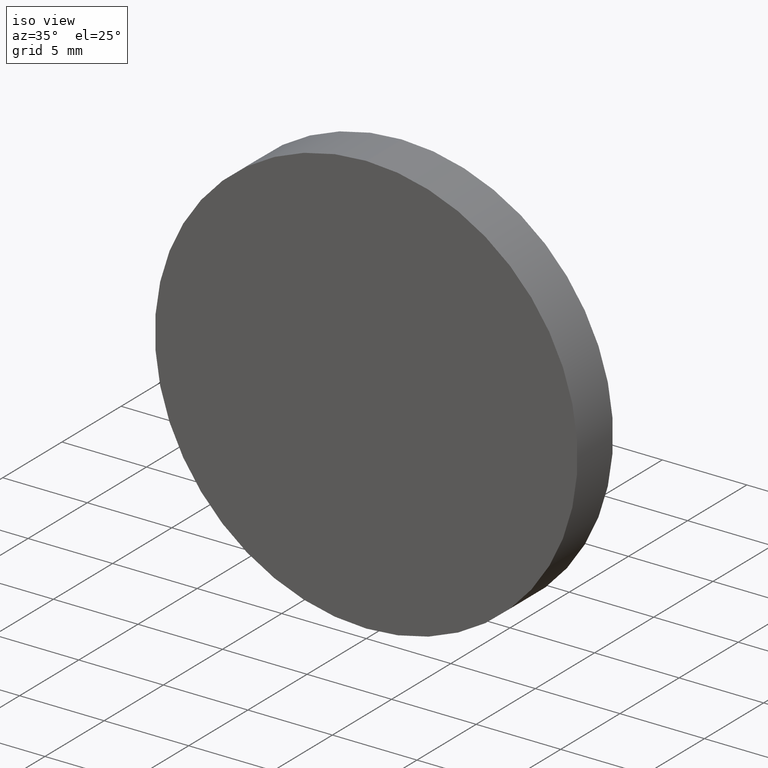
[diagram: clean part render]
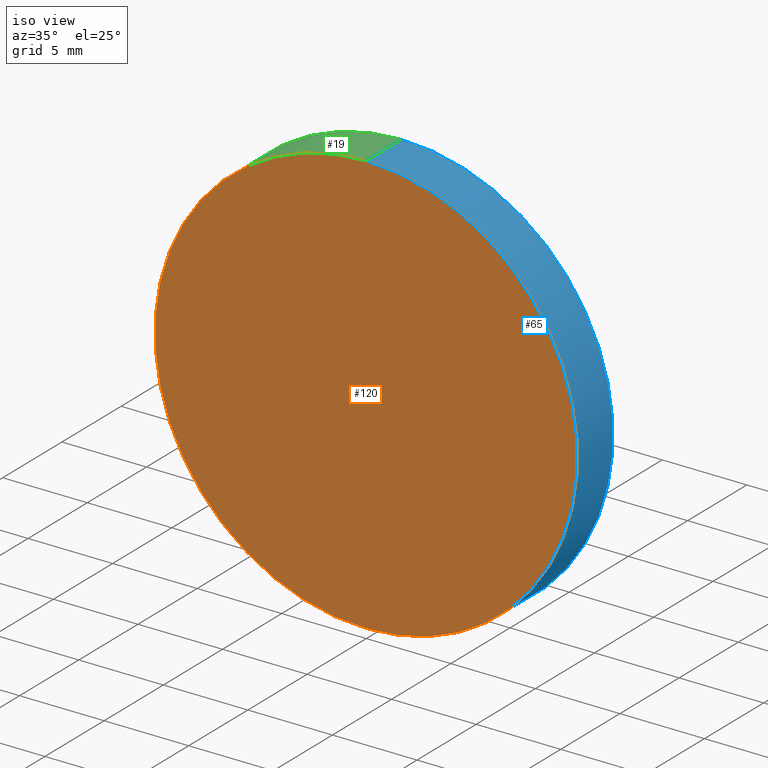
[diagram: same view with three faces highlighted in distinct colors, each labeled with its STEP entity id]
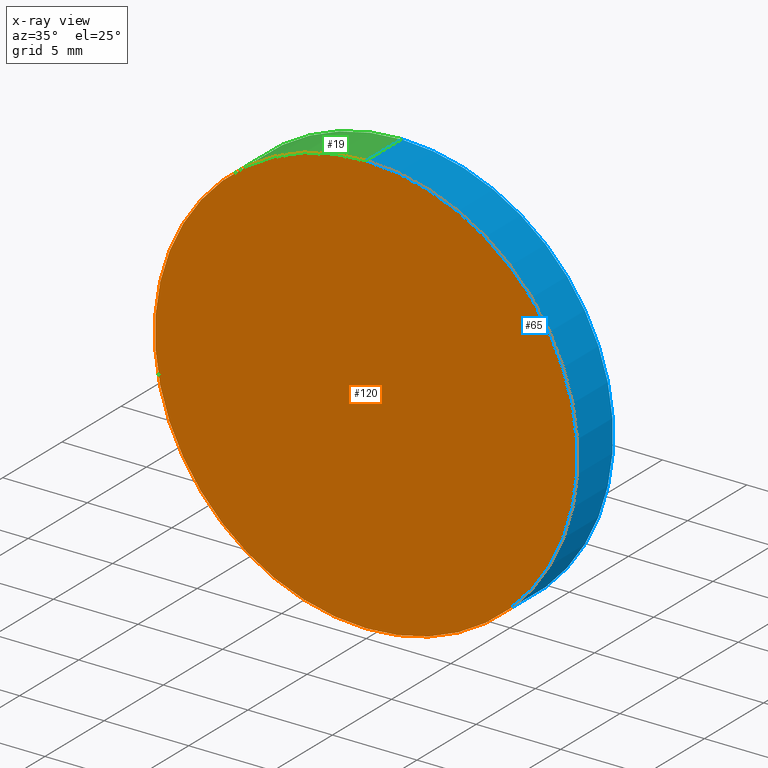
[diagram: x-ray of the same camera — body ghosted, the three highlighted faces saturated]
A machine part, iso view with three faces highlighted in distinct colors.
The next image is the same camera in x-ray (body ghosted, the three faces saturated) — at least one of them is partly hidden behind the body in this view.
Their STEP definitions:

[orange] entity #120 — the highlighted planar face has unit normal (0, 1, 0).
#5 = CIRCLE ( 'NONE', #113, 12.50000000000000000 ) ;
#8 = CARTESIAN_POINT ( 'NONE',  ( 1.530808498934191500E-015, 0.0000000000000000000, 12.50000000000000000 ) ) ;
#13 = VERTEX_POINT ( 'NONE', #8 ) ;
#15 = ORIENTED_EDGE ( 'NONE', *, *, #125, .F. ) ;
#16 = DIRECTION ( 'NONE',  ( 0.0000000000000000000, 0.0000000000000000000, 1.000000000000000000 ) ) ;
#20 = VERTEX_POINT ( 'NONE', #91 ) ;
#35 = AXIS2_PLACEMENT_3D ( 'NONE', #106, #94, #16 ) ;
#42 = AXIS2_PLACEMENT_3D ( 'NONE', #107, #73, #137 ) ;
#54 = CIRCLE ( 'NONE', #35, 12.50000000000000000 ) ;
#61 = CARTESIAN_POINT ( 'NONE',  ( 0.0000000000000000000, 0.0000000000000000000, 0.0000000000000000000 ) ) ;
#66 = DIRECTION ( 'NONE',  ( 0.0000000000000000000, 1.000000000000000000, 0.0000000000000000000 ) ) ;
#68 = ORIENTED_EDGE ( 'NONE', *, *, #69, .F. ) ;
#69 = EDGE_CURVE ( 'NONE', #13, #20, #5, .T. ) ;
#70 = PLANE ( 'NONE',  #42 ) ;
#73 = DIRECTION ( 'NONE',  ( 0.0000000000000000000, 1.000000000000000000, 0.0000000000000000000 ) ) ;
#77 = EDGE_LOOP ( 'NONE', ( #15, #68 ) ) ;
#91 = CARTESIAN_POINT ( 'NONE',  ( 0.0000000000000000000, 0.0000000000000000000, -12.50000000000000000 ) ) ;
#94 = DIRECTION ( 'NONE',  ( 0.0000000000000000000, 1.000000000000000000, 0.0000000000000000000 ) ) ;
#106 = CARTESIAN_POINT ( 'NONE',  ( 0.0000000000000000000, 0.0000000000000000000, 0.0000000000000000000 ) ) ;
#107 = CARTESIAN_POINT ( 'NONE',  ( 0.0000000000000000000, 0.0000000000000000000, 0.0000000000000000000 ) ) ;
#113 = AXIS2_PLACEMENT_3D ( 'NONE', #61, #66, #127 ) ;
#120 = ADVANCED_FACE ( 'NONE', ( #134 ), #70, .F. ) ;
#125 = EDGE_CURVE ( 'NONE', #20, #13, #54, .T. ) ;
#127 = DIRECTION ( 'NONE',  ( 0.0000000000000000000, 0.0000000000000000000, 1.000000000000000000 ) ) ;
#134 = FACE_OUTER_BOUND ( 'NONE', #77, .T. ) ;
#137 = DIRECTION ( 'NONE',  ( 0.0000000000000000000, -0.0000000000000000000, 1.000000000000000000 ) ) ;

[blue] entity #65 — the highlighted cylindrical surface (partial cylindrical patch) has radius 12.5 mm, axis along (-0, -1, -0).
#3 = LINE ( 'NONE', #31, #53 ) ;
#5 = CIRCLE ( 'NONE', #113, 12.50000000000000000 ) ;
#8 = CARTESIAN_POINT ( 'NONE',  ( 1.530808498934191500E-015, 0.0000000000000000000, 12.50000000000000000 ) ) ;
#13 = VERTEX_POINT ( 'NONE', #8 ) ;
#14 = VERTEX_POINT ( 'NONE', #74 ) ;
#20 = VERTEX_POINT ( 'NONE', #91 ) ;
#21 = CARTESIAN_POINT ( 'NONE',  ( 1.530808498934191500E-015, 3.000000000000000000, 12.50000000000000000 ) ) ;
#22 = EDGE_CURVE ( 'NONE', #14, #20, #114, .T. ) ;
#26 = CARTESIAN_POINT ( 'NONE',  ( 0.0000000000000000000, 3.000000000000000000, 0.0000000000000000000 ) ) ;
#28 = CYLINDRICAL_SURFACE ( 'NONE', #76, 12.50000000000000000 ) ;
#31 = CARTESIAN_POINT ( 'NONE',  ( 1.530808498934191500E-015, 3.000000000000000000, 12.50000000000000000 ) ) ;
#34 = DIRECTION ( 'NONE',  ( -0.0000000000000000000, -1.000000000000000000, -0.0000000000000000000 ) ) ;
#36 = EDGE_LOOP ( 'NONE', ( #80, #41, #123, #100 ) ) ;
#41 = ORIENTED_EDGE ( 'NONE', *, *, #101, .T. ) ;
#52 = DIRECTION ( 'NONE',  ( -0.0000000000000000000, -1.000000000000000000, -0.0000000000000000000 ) ) ;
#53 = VECTOR ( 'NONE', #139, 1000.000000000000000 ) ;
#55 = AXIS2_PLACEMENT_3D ( 'NONE', #72, #136, #124 ) ;
#59 = FACE_OUTER_BOUND ( 'NONE', #36, .T. ) ;
#61 = CARTESIAN_POINT ( 'NONE',  ( 0.0000000000000000000, 0.0000000000000000000, 0.0000000000000000000 ) ) ;
#65 = ADVANCED_FACE ( 'NONE', ( #59 ), #28, .T. ) ;
#66 = DIRECTION ( 'NONE',  ( 0.0000000000000000000, 1.000000000000000000, 0.0000000000000000000 ) ) ;
#69 = EDGE_CURVE ( 'NONE', #13, #20, #5, .T. ) ;
#72 = CARTESIAN_POINT ( 'NONE',  ( 0.0000000000000000000, 3.000000000000000000, 0.0000000000000000000 ) ) ;
#74 = CARTESIAN_POINT ( 'NONE',  ( 0.0000000000000000000, 3.000000000000000000, -12.50000000000000000 ) ) ;
#76 = AXIS2_PLACEMENT_3D ( 'NONE', #26, #34, #98 ) ;
#80 = ORIENTED_EDGE ( 'NONE', *, *, #131, .F. ) ;
#83 = CIRCLE ( 'NONE', #55, 12.50000000000000000 ) ;
#90 = VECTOR ( 'NONE', #52, 1000.000000000000000 ) ;
#91 = CARTESIAN_POINT ( 'NONE',  ( 0.0000000000000000000, 0.0000000000000000000, -12.50000000000000000 ) ) ;
#98 = DIRECTION ( 'NONE',  ( 0.0000000000000000000, 0.0000000000000000000, -1.000000000000000000 ) ) ;
#100 = ORIENTED_EDGE ( 'NONE', *, *, #22, .F. ) ;
#101 = EDGE_CURVE ( 'NONE', #104, #13, #3, .T. ) ;
#102 = CARTESIAN_POINT ( 'NONE',  ( 0.0000000000000000000, 3.000000000000000000, -12.50000000000000000 ) ) ;
#104 = VERTEX_POINT ( 'NONE', #21 ) ;
#113 = AXIS2_PLACEMENT_3D ( 'NONE', #61, #66, #127 ) ;
#114 = LINE ( 'NONE', #102, #90 ) ;
#123 = ORIENTED_EDGE ( 'NONE', *, *, #69, .T. ) ;
#124 = DIRECTION ( 'NONE',  ( 0.0000000000000000000, 0.0000000000000000000, 1.000000000000000000 ) ) ;
#127 = DIRECTION ( 'NONE',  ( 0.0000000000000000000, 0.0000000000000000000, 1.000000000000000000 ) ) ;
#131 = EDGE_CURVE ( 'NONE', #104, #14, #83, .T. ) ;
#136 = DIRECTION ( 'NONE',  ( 0.0000000000000000000, 1.000000000000000000, 0.0000000000000000000 ) ) ;
#139 = DIRECTION ( 'NONE',  ( -0.0000000000000000000, -1.000000000000000000, -0.0000000000000000000 ) ) ;

[green] entity #19 — the highlighted cylindrical surface (partial cylindrical patch) has radius 12.5 mm, axis along (-0, -1, -0).
#3 = LINE ( 'NONE', #31, #53 ) ;
#8 = CARTESIAN_POINT ( 'NONE',  ( 1.530808498934191500E-015, 0.0000000000000000000, 12.50000000000000000 ) ) ;
#9 = DIRECTION ( 'NONE',  ( 0.0000000000000000000, 0.0000000000000000000, 1.000000000000000000 ) ) ;
#13 = VERTEX_POINT ( 'NONE', #8 ) ;
#14 = VERTEX_POINT ( 'NONE', #74 ) ;
#16 = DIRECTION ( 'NONE',  ( 0.0000000000000000000, 0.0000000000000000000, 1.000000000000000000 ) ) ;
#17 = DIRECTION ( 'NONE',  ( 0.0000000000000000000, 0.0000000000000000000, -1.000000000000000000 ) ) ;
#18 = CARTESIAN_POINT ( 'NONE',  ( 0.0000000000000000000, 3.000000000000000000, 0.0000000000000000000 ) ) ;
#19 = ADVANCED_FACE ( 'NONE', ( #23 ), #27, .T. ) ;
#20 = VERTEX_POINT ( 'NONE', #91 ) ;
#21 = CARTESIAN_POINT ( 'NONE',  ( 1.530808498934191500E-015, 3.000000000000000000, 12.50000000000000000 ) ) ;
#22 = EDGE_CURVE ( 'NONE', #14, #20, #114, .T. ) ;
#23 = FACE_OUTER_BOUND ( 'NONE', #130, .T. ) ;
#27 = CYLINDRICAL_SURFACE ( 'NONE', #95, 12.50000000000000000 ) ;
#31 = CARTESIAN_POINT ( 'NONE',  ( 1.530808498934191500E-015, 3.000000000000000000, 12.50000000000000000 ) ) ;
#32 = ORIENTED_EDGE ( 'NONE', *, *, #101, .F. ) ;
#35 = AXIS2_PLACEMENT_3D ( 'NONE', #106, #94, #16 ) ;
#47 = EDGE_CURVE ( 'NONE', #14, #104, #87, .T. ) ;
#52 = DIRECTION ( 'NONE',  ( -0.0000000000000000000, -1.000000000000000000, -0.0000000000000000000 ) ) ;
#53 = VECTOR ( 'NONE', #139, 1000.000000000000000 ) ;
#54 = CIRCLE ( 'NONE', #35, 12.50000000000000000 ) ;
#62 = CARTESIAN_POINT ( 'NONE',  ( 0.0000000000000000000, 3.000000000000000000, 0.0000000000000000000 ) ) ;
#71 = ORIENTED_EDGE ( 'NONE', *, *, #125, .T. ) ;
#74 = CARTESIAN_POINT ( 'NONE',  ( 0.0000000000000000000, 3.000000000000000000, -12.50000000000000000 ) ) ;
#86 = DIRECTION ( 'NONE',  ( 0.0000000000000000000, 1.000000000000000000, 0.0000000000000000000 ) ) ;
#87 = CIRCLE ( 'NONE', #89, 12.50000000000000000 ) ;
#89 = AXIS2_PLACEMENT_3D ( 'NONE', #18, #86, #9 ) ;
#90 = VECTOR ( 'NONE', #52, 1000.000000000000000 ) ;
#91 = CARTESIAN_POINT ( 'NONE',  ( 0.0000000000000000000, 0.0000000000000000000, -12.50000000000000000 ) ) ;
#94 = DIRECTION ( 'NONE',  ( 0.0000000000000000000, 1.000000000000000000, 0.0000000000000000000 ) ) ;
#95 = AXIS2_PLACEMENT_3D ( 'NONE', #62, #121, #17 ) ;
#101 = EDGE_CURVE ( 'NONE', #104, #13, #3, .T. ) ;
#102 = CARTESIAN_POINT ( 'NONE',  ( 0.0000000000000000000, 3.000000000000000000, -12.50000000000000000 ) ) ;
#104 = VERTEX_POINT ( 'NONE', #21 ) ;
#106 = CARTESIAN_POINT ( 'NONE',  ( 0.0000000000000000000, 0.0000000000000000000, 0.0000000000000000000 ) ) ;
#114 = LINE ( 'NONE', #102, #90 ) ;
#121 = DIRECTION ( 'NONE',  ( -0.0000000000000000000, -1.000000000000000000, -0.0000000000000000000 ) ) ;
#125 = EDGE_CURVE ( 'NONE', #20, #13, #54, .T. ) ;
#130 = EDGE_LOOP ( 'NONE', ( #32, #138, #132, #71 ) ) ;
#132 = ORIENTED_EDGE ( 'NONE', *, *, #22, .T. ) ;
#138 = ORIENTED_EDGE ( 'NONE', *, *, #47, .F. ) ;
#139 = DIRECTION ( 'NONE',  ( -0.0000000000000000000, -1.000000000000000000, -0.0000000000000000000 ) ) ;